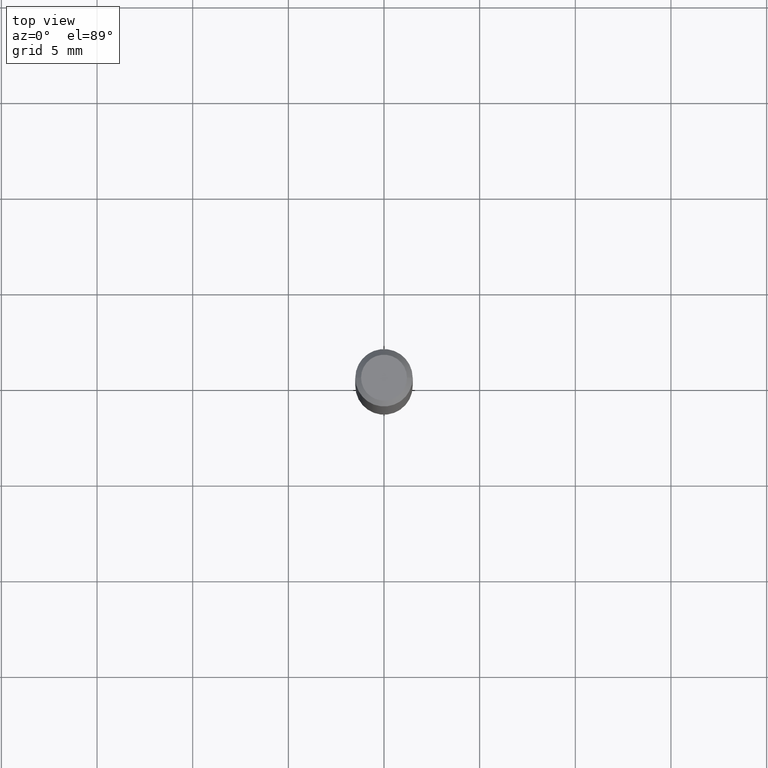
[diagram: clean part render]
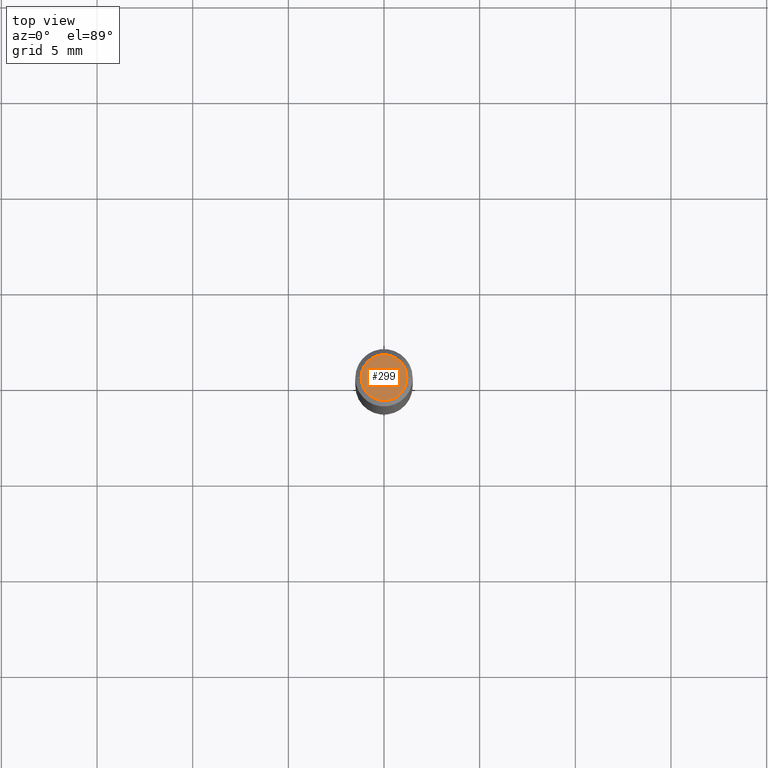
[diagram: same view with one face highlighted and labeled with its STEP entity id]
A machine part, top view. The second image highlights one B-rep face of the part: STEP entity #299.
In plain terms, the highlighted planar face has unit normal (0, -0, -1).
Its self-contained STEP definition (entity closure, byte-faithful):
#10 = CIRCLE ( 'NONE', #287, 0.04724000000000000421 ) ;
#42 = ORIENTED_EDGE ( 'NONE', *, *, #422, .T. ) ;
#52 = CARTESIAN_POINT ( 'NONE',  ( -0.04724000000000000421, 3.504923541997677355E-16, -3.380025165670481712E-19 ) ) ;
#93 = VERTEX_POINT ( 'NONE', #248 ) ;
#137 = EDGE_CURVE ( 'NONE', #449, #93, #451, .T. ) ;
#149 = CARTESIAN_POINT ( 'NONE',  ( 8.265746106709734507E-48, -1.180129479067563789E-33, -3.380025165646692144E-19 ) ) ;
#151 = DIRECTION ( 'NONE',  ( -2.445468806185136597E-29, 3.491481338843145583E-15, 1.000000000000000000 ) ) ;
#205 = EDGE_LOOP ( 'NONE', ( #459, #42 ) ) ;
#218 = DIRECTION ( 'NONE',  ( -2.445468806185136597E-29, 3.491481338843145583E-15, 1.000000000000000000 ) ) ;
#234 = FACE_OUTER_BOUND ( 'NONE', #205, .T. ) ;
#245 = CARTESIAN_POINT ( 'NONE',  ( 8.265746106709734507E-48, -1.180129479067563789E-33, -3.380025165646692144E-19 ) ) ;
#248 = CARTESIAN_POINT ( 'NONE',  ( 0.04724000000000000421, -3.852183633974369345E-16, -3.380025165621689721E-19 ) ) ;
#274 = DIRECTION ( 'NONE',  ( 2.438088387897960049E-29, -3.491481338843145188E-15, -1.000000000000000000 ) ) ;
#287 = AXIS2_PLACEMENT_3D ( 'NONE', #149, #218, #363 ) ;
#299 = ADVANCED_FACE ( 'NONE', ( #234 ), #389, .F. ) ;
#363 = DIRECTION ( 'NONE',  ( 1.000000000000000000, -6.982962677686266711E-15, 4.876185090822587894E-29 ) ) ;
#389 = PLANE ( 'NONE',  #486 ) ;
#397 = DIRECTION ( 'NONE',  ( -1.000000000000000000, 6.982962677686265922E-15, -4.876176775795935793E-29 ) ) ;
#422 = EDGE_CURVE ( 'NONE', #93, #449, #10, .T. ) ;
#443 = DIRECTION ( 'NONE',  ( 1.000000000000000000, -6.982962677686266711E-15, 4.876185090822587894E-29 ) ) ;
#445 = AXIS2_PLACEMENT_3D ( 'NONE', #245, #151, #443 ) ;
#449 = VERTEX_POINT ( 'NONE', #52 ) ;
#451 = CIRCLE ( 'NONE', #445, 0.04724000000000000421 ) ;
#459 = ORIENTED_EDGE ( 'NONE', *, *, #137, .T. ) ;
#468 = CARTESIAN_POINT ( 'NONE',  ( 4.132873053354867254E-48, -5.900647395337818946E-34, -1.690012582823346072E-19 ) ) ;
#486 = AXIS2_PLACEMENT_3D ( 'NONE', #468, #274, #397 ) ;